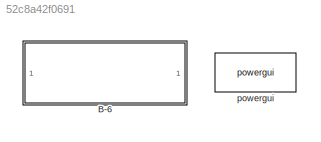
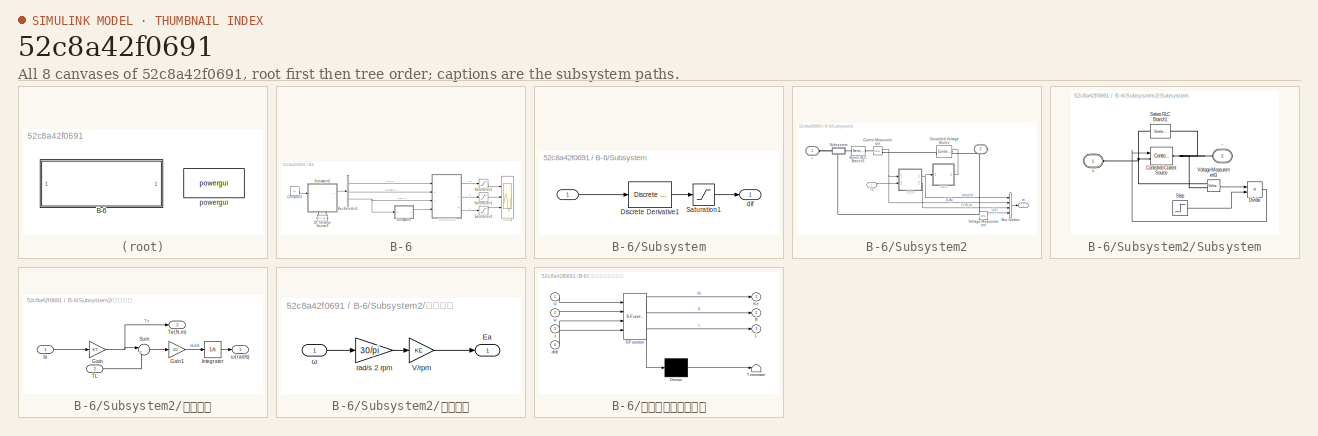
[diagram: thumbnail index - all 8 canvases of the model, root first then tree order]
MODEL slx_52c8a42f0691
KIND model
CONFIG StopFcn = %CELEC_plot;
BLOCK [SubSystem] B-6
  FunctionWithSeparateData = off
  MaskHideContents = off
  MinAlgLoopOccurrences = off
  Opaque = off
  Ports = []
  PropExecContextOutsideSubsystem = off
  RTWSystemCode = Auto
  RequestExecContextInheritance = off
BLOCK [BusSelector] B-6/Bus Selector3
  OutputSignals = U(V),ω(rad/s),Ia(A)
  Ports = [1, 3]
BLOCK [Constant] B-6/Constant3
  Value = 10
BLOCK [Reference] B-6/DC Voltage Source3  REF=powerlib/Electrical
Sources/DC Voltage Source
  Amplitude = Vset
  Measurements = None
  Ports = [0, 0, 0, 0, 0, 1, 1]
  SourceBlock = powerlib/Electrical\nSources/DC Voltage Source
  SourceType = DC Voltage Source
BLOCK [Saturate] B-6/Saturation2
  InputPortMap = u0
  LowerLimit = 0
  Ports = [1, 1]
  UpperLimit = 5
BLOCK [Saturate] B-6/Saturation3
  InputPortMap = u0
  LowerLimit = 0
  Ports = [1, 1]
  UpperLimit = 5
BLOCK [Saturate] B-6/Saturation4
  InputPortMap = u0
  LowerLimit = 0
  Ports = [1, 1]
  UpperLimit = 0.1
BLOCK [SubSystem] B-6/Subsystem
  FunctionWithSeparateData = off
  MaskHideContents = off
  MinAlgLoopOccurrences = off
  Opaque = off
  Ports = [1, 1]
  PropExecContextOutsideSubsystem = off
  RTWSystemCode = Auto
  RequestExecContextInheritance = off
BLOCK [Inport] B-6/Subsystem/ 
  IconDisplay = Port number
BLOCK [Reference] B-6/Subsystem/Discrete Derivative1  REF=simulink/Discrete/Discrete Derivative
  DoSatur = off
  ICPrevScaledInput = 0
  InputProcessing = Elements as channels (sample based)
  LockScale = off
  OutDataType = fixdt(1, 16)
  OutDataTypeStr = Inherit: Inherit via internal rule
  OutMax = []
  OutMin = []
  OutScaling = 2^-10
  OutputDataTypeScalingMode = Inherit via internal rule
  Ports = [1, 1]
  RndMeth = Floor
  SourceBlock = simulink/Discrete/Discrete Derivative
  SourceType = Discrete Derivative
  gainval = 1.0
BLOCK [Saturate] B-6/Subsystem/Saturation1
  InputPortMap = u0
  LowerLimit = -1000
  Ports = [1, 1]
  UpperLimit = 1000
BLOCK [Outport] B-6/Subsystem/dif
  IconDisplay = Port number
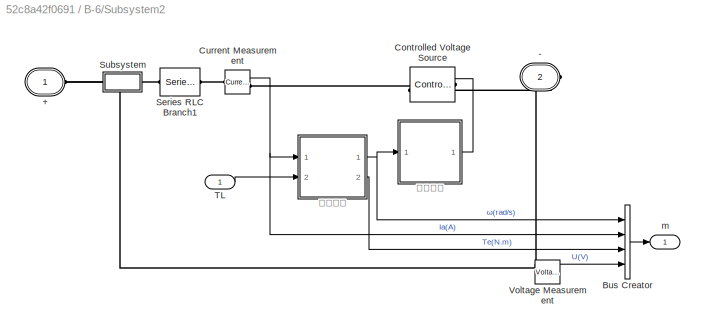
BLOCK [SubSystem] B-6/Subsystem2
  FunctionWithSeparateData = off
  MaskHideContents = off
  MinAlgLoopOccurrences = off
  Opaque = off
  Ports = [1, 1, 0, 0, 0, 1, 1]
  PropExecContextOutsideSubsystem = off
  RTWSystemCode = Auto
  RequestExecContextInheritance = off
BLOCK [PMIOPort] B-6/Subsystem2/+
  Side = Left
  Tag = PMCPort
BLOCK [PMIOPort] B-6/Subsystem2/-
  Port = 2
  Side = Right
  Tag = PMCPort
BLOCK [BusCreator] B-6/Subsystem2/Bus Creator
  DisplayOption = bar
  Inputs = 4
  Ports = [4, 1]
BLOCK [Reference] B-6/Subsystem2/Controlled Voltage Source  REF=powerlib/Electrical
Sources/Controlled Voltage Source
  Amplitude = 0
  Frequency = 0
  Initialize = on
  Measurements = None
  Phase = 0
  Ports = [1, 0, 0, 0, 0, 1, 1]
  SourceBlock = powerlib/Electrical\nSources/Controlled Voltage Source
  SourceType = Controlled Voltage Source
  Source_Type = AC
BLOCK [Reference] B-6/Subsystem2/Current Measurement  REF=powerlib/Measurements/Current Measurement
  OutputType = Complex
  PSBequivalent = 0
  PhasorSimulation = off
  Ports = [0, 1, 0, 0, 0, 1, 1]
  SourceBlock = powerlib/Measurements/Current Measurement
  SourceType = Current Measurement
  UserDataPersistent = on
BLOCK [Reference] B-6/Subsystem2/Series RLC Branch1  REF=powerlib/Elements/Series RLC Branch
  BranchType = L
  Capacitance = 1e-6
  Inductance = L
  InitialCurrent = 0
  InitialVoltage = 0
  LConnTagsString = __new0
  Measurements = None
  Ports = [0, 0, 0, 0, 0, 1, 1]
  RConnTagsString = __new0
  Resistance = R
  SetiL0 = off
  Setx0 = off
  SourceBlock = powerlib/Elements/Series RLC Branch
  SourceType = Series RLC Branch
BLOCK [SubSystem] B-6/Subsystem2/Subsystem
  FunctionWithSeparateData = off
  MaskHideContents = off
  MinAlgLoopOccurrences = off
  Opaque = off
  Ports = [0, 0, 0, 0, 0, 1, 1]
  PropExecContextOutsideSubsystem = off
  RTWSystemCode = Auto
  RequestExecContextInheritance = off
BLOCK [PMIOPort] B-6/Subsystem2/Subsystem/+
  Side = Left
  Tag = PMCPort
BLOCK [PMIOPort] B-6/Subsystem2/Subsystem/-
  Port = 2
  Side = Right
  Tag = PMCPort
BLOCK [Reference] B-6/Subsystem2/Subsystem/Controlled Current Source  REF=powerlib/Electrical
Sources/Controlled Current Source
  Amplitude = 0
  Frequency = 0
  Initialize = on
  Measurements = None
  Phase = 0
  Ports = [1, 0, 0, 0, 0, 1, 1]
  SourceBlock = powerlib/Electrical\nSources/Controlled Current Source
  SourceType = Controlled Current Source
  Source_Type = AC
BLOCK [Product] B-6/Subsystem2/Subsystem/Divide
  InputSameDT = off
  Inputs = */
  OutDataTypeStr = Inherit: Inherit via internal rule
  Ports = [2, 1]
  RndMeth = Floor
  SaturateOnIntegerOverflow = off
BLOCK [Reference] B-6/Subsystem2/Subsystem/Series RLC Branch1  REF=powerlib/Elements/Series RLC Branch
  BranchType = R
  Capacitance = 1e-6
  Inductance = L
  InitialCurrent = 0
  InitialVoltage = 0
  LConnTagsString = __new0
  Measurements = None
  Ports = [0, 0, 0, 0, 0, 1, 1]
  RConnTagsString = __new0
  Resistance = 1e4
  SetiL0 = off
  Setx0 = off
  SourceBlock = powerlib/Elements/Series RLC Branch
  SourceType = Series RLC Branch
BLOCK [Step] B-6/Subsystem2/Subsystem/Step
  After = R*2
  Before = R
  SampleTime = 0
  Time = 0.5
BLOCK [Reference] B-6/Subsystem2/Subsystem/Voltage Measurement3  REF=powerlib/Measurements/Voltage Measurement
  OutputType = Complex
  PSBequivalent = 0
  PhasorSimulation = off
  Ports = [0, 1, 0, 0, 0, 2]
  SourceBlock = powerlib/Measurements/Voltage Measurement
  SourceType = Voltage Measurement
  UserDataPersistent = on
BLOCK [Inport] B-6/Subsystem2/TL
  IconDisplay = Port number
BLOCK [Reference] B-6/Subsystem2/Voltage Measurement  REF=powerlib/Measurements/Voltage Measurement
  OutputType = Complex
  PSBequivalent = 0
  PhasorSimulation = off
  Ports = [0, 1, 0, 0, 0, 2]
  SourceBlock = powerlib/Measurements/Voltage Measurement
  SourceType = Voltage Measurement
  UserDataPersistent = on
BLOCK [Outport] B-6/Subsystem2/m
  IconDisplay = Port number
BLOCK [SubSystem] B-6/Subsystem2/机械方程
  FunctionWithSeparateData = off
  MaskHideContents = off
  MinAlgLoopOccurrences = off
  Opaque = off
  Ports = [2, 2]
  PropExecContextOutsideSubsystem = off
  RTWSystemCode = Auto
  RequestExecContextInheritance = off
BLOCK [Gain] B-6/Subsystem2/机械方程/Gain
  Gain = KT
  OutDataTypeStr = Inherit: Inherit via internal rule
  ParamDataTypeStr = Inherit: Inherit via internal rule
  SaturateOnIntegerOverflow = off
BLOCK [Gain] B-6/Subsystem2/机械方程/Gain1
  Gain = 1/J
  OutDataTypeStr = Inherit: Inherit via internal rule
  ParamDataTypeStr = Inherit: Inherit via internal rule
  SaturateOnIntegerOverflow = off
BLOCK [Inport] B-6/Subsystem2/机械方程/Ia
  IconDisplay = Port number
BLOCK [Integrator] B-6/Subsystem2/机械方程/Integrator
  Ports = [1, 1]
BLOCK [Sum] B-6/Subsystem2/机械方程/Sum
  IconShape = round
  InputSameDT = off
  Inputs = |+-
  OutDataTypeStr = Inherit: Inherit via internal rule
  Ports = [2, 1]
  SaturateOnIntegerOverflow = off
BLOCK [Inport] B-6/Subsystem2/机械方程/TL
  IconDisplay = Port number
  Port = 2
BLOCK [Outport] B-6/Subsystem2/机械方程/Te(N.m)
  IconDisplay = Port number
  Port = 2
BLOCK [Outport] B-6/Subsystem2/机械方程/ω(rad//s)
  IconDisplay = Port number
BLOCK [SubSystem] B-6/Subsystem2/电气方程
  FunctionWithSeparateData = off
  MaskHideContents = off
  MinAlgLoopOccurrences = off
  Opaque = off
  Ports = [1, 1]
  PropExecContextOutsideSubsystem = off
  RTWSystemCode = Auto
  RequestExecContextInheritance = off
BLOCK [Outport] B-6/Subsystem2/电气方程/Ea
  IconDisplay = Port number
BLOCK [Gain] B-6/Subsystem2/电气方程/V//rpm
  Gain = KE
  OutDataTypeStr = Inherit: Inherit via internal rule
  ParamDataTypeStr = Inherit: Inherit via internal rule
  SaturateOnIntegerOverflow = off
BLOCK [Gain] B-6/Subsystem2/电气方程/rad//s 2 rpm
  Gain = 30/pi
  OutDataTypeStr = Inherit: Inherit via internal rule
  ParamDataTypeStr = Inherit: Inherit via internal rule
  SaturateOnIntegerOverflow = off
BLOCK [Inport] B-6/Subsystem2/电气方程/ω
  IconDisplay = Port number
BLOCK [Scope] B-6/参数辨识2
  DataFormat = StructureWithTime
  Decimation = 1
  Floating = off
  Grid = on
  LimitDataPoints = off
  MaxDataPoints = 5000
  NumInputPorts = 3
  Ports = [3]
  SampleInput = off
  SampleTime = -1
  SaveName = ScopeData4
  SaveToWorkspace = off
  ShowLegends = off
  TickLabels = OneTimeTick
  TimeRange = auto
  YMax = 5.625~4.71068~0.1125
  YMin = -0.625~-0.52341~-0.0125
  ZoomMode = on
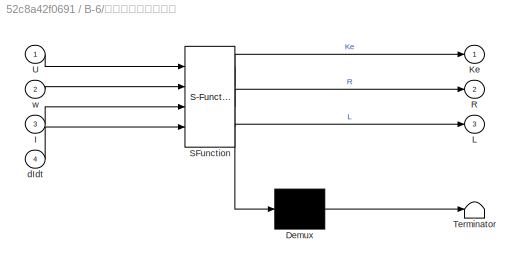
BLOCK [SubSystem] B-6/最小二乘法参数辨识
  ErrorFcn = Stateflow.Translate.translate
  FunctionWithSeparateData = off
  MaskHideContents = off
  MinAlgLoopOccurrences = off
  Opaque = off
  PermitHierarchicalResolution = ParametersOnly
  Ports = [4, 3]
  PropExecContextOutsideSubsystem = off
  RTWSystemCode = Auto
  RequestExecContextInheritance = off
  SFBlockType = MATLAB Function
  TreatAsAtomicUnit = on
BLOCK [Demux] B-6/最小二乘法参数辨识/ Demux 
  Outputs = 1
  Ports = [1, 1]
BLOCK [S-Function] B-6/最小二乘法参数辨识/ SFunction 
  EnableBusSupport = on
  FunctionName = sf_sfun
  PortCounts = [4 4]
  Ports = [4, 4]
  SFunctionDeploymentMode = off
  Tag = Stateflow S-Function B_6_2012b 2
BLOCK [Terminator] B-6/最小二乘法参数辨识/ Terminator 
BLOCK [Inport] B-6/最小二乘法参数辨识/I
  IconDisplay = Port number
  Port = 3
BLOCK [Outport] B-6/最小二乘法参数辨识/Ke
  IconDisplay = Port number
BLOCK [Outport] B-6/最小二乘法参数辨识/L
  IconDisplay = Port number
  Port = 3
BLOCK [Outport] B-6/最小二乘法参数辨识/R
  IconDisplay = Port number
  Port = 2
BLOCK [Inport] B-6/最小二乘法参数辨识/U
  IconDisplay = Port number
BLOCK [Inport] B-6/最小二乘法参数辨识/dIdt
  IconDisplay = Port number
  Port = 4
BLOCK [Inport] B-6/最小二乘法参数辨识/w
  IconDisplay = Port number
  Port = 2
BLOCK [Reference] powergui  REF=powerlib/powergui
  CurrentSourceSwitches = off
  DisableRonSwitches = off
  DisableSnubberDevices = off
  DisableVfSwitches = off
  DisplayEquations = off
  DisplayStyle = 1
  EnableUseOfTLC = off
  ErrMax = 1e-4
  ExternalGateDelay = off
  Frange = [0:2:500]
  FreqAxis = off
  FunctionMessages = off
  HookPort = off
  Interpol = off
  Iterations = 50
  MaxFrequency = 1000
  Pbase = 100e6
  Ports = []
  Priority = 1
  ResistiveCurrentMeasurement = off
  RestoreLinks = warning
  RmsSteady = 1
  SPID = on
  SampleTime = 50e-6
  ShowGrid = off
  SolverType = Tustin/Backward Euler (TBE)
  SourceBlock = powerlib/powergui
  SourceType = PSB option menu block
  StartTime = 0.0
  SwTol = 0
  Ts = 100
  UnitsV = kV
  UnitsW = MW
  Xlog = on
  Ylog = off
  ZoomFFT = off
  buscounter = 0
  cycles = 1
  display = off
  echomessages = off
  frequency = 60
  frequencyindice = 0
  frequencyindicesteady = 1
  fundamental = 60
  methode = off
  save = off
  structure = 0
  variable = ZData
  x0status = blocks
LINE B-6/Bus Selector3:1 -> B-6/最小二乘法参数辨识:1
LINE B-6/Bus Selector3:2 -> B-6/最小二乘法参数辨识:2
NET B-6/Bus Selector3:3 -> B-6/Subsystem:1, B-6/最小二乘法参数辨识:3
LINE B-6/Constant3:1 -> B-6/Subsystem2:1
LINE B-6/Saturation2:1 -> B-6/参数辨识2:1
LINE B-6/Saturation3:1 -> B-6/参数辨识2:2
LINE B-6/Saturation4:1 -> B-6/参数辨识2:3
LINE B-6/Subsystem/ :1 -> B-6/Subsystem/Discrete Derivative1:1
LINE B-6/Subsystem/Discrete Derivative1:1 -> B-6/Subsystem/Saturation1:1
LINE B-6/Subsystem/Saturation1:1 -> B-6/Subsystem/dif:1
LINE B-6/Subsystem2/Bus Creator:1 -> B-6/Subsystem2/m:1
NET B-6/Subsystem2/Current Measurement:1 -> B-6/Subsystem2/Bus Creator:2, B-6/Subsystem2/机械方程:1
LINE B-6/Subsystem2/Subsystem/Divide:1 -> B-6/Subsystem2/Subsystem/Controlled Current Source:1
LINE B-6/Subsystem2/Subsystem/Step:1 -> B-6/Subsystem2/Subsystem/Divide:2
LINE B-6/Subsystem2/Subsystem/Voltage Measurement3:1 -> B-6/Subsystem2/Subsystem/Divide:1
LINE B-6/Subsystem2/TL:1 -> B-6/Subsystem2/机械方程:2
LINE B-6/Subsystem2/Voltage Measurement:1 -> B-6/Subsystem2/Bus Creator:4
LINE B-6/Subsystem2/机械方程/Gain1:1 -> B-6/Subsystem2/机械方程/Integrator:1
NET B-6/Subsystem2/机械方程/Gain:1 -> B-6/Subsystem2/机械方程/Sum:1, B-6/Subsystem2/机械方程/Te(N.m):1
LINE B-6/Subsystem2/机械方程/Ia:1 -> B-6/Subsystem2/机械方程/Gain:1
LINE B-6/Subsystem2/机械方程/Integrator:1 -> B-6/Subsystem2/机械方程/ω(rad//s):1
LINE B-6/Subsystem2/机械方程/Sum:1 -> B-6/Subsystem2/机械方程/Gain1:1
LINE B-6/Subsystem2/机械方程/TL:1 -> B-6/Subsystem2/机械方程/Sum:2
NET B-6/Subsystem2/机械方程:1 -> B-6/Subsystem2/Bus Creator:1, B-6/Subsystem2/电气方程:1
LINE B-6/Subsystem2/机械方程:2 -> B-6/Subsystem2/Bus Creator:3
LINE B-6/Subsystem2/电气方程/V//rpm:1 -> B-6/Subsystem2/电气方程/Ea:1
LINE B-6/Subsystem2/电气方程/rad//s 2 rpm:1 -> B-6/Subsystem2/电气方程/V//rpm:1
LINE B-6/Subsystem2/电气方程/ω:1 -> B-6/Subsystem2/电气方程/rad//s 2 rpm:1
LINE B-6/Subsystem2/电气方程:1 -> B-6/Subsystem2/Controlled Voltage Source:1
LINE B-6/Subsystem2:1 -> B-6/Bus Selector3:1
LINE B-6/Subsystem:1 -> B-6/最小二乘法参数辨识:4
LINE B-6/最小二乘法参数辨识:1 -> B-6/Saturation2:1
LINE B-6/最小二乘法参数辨识:2 -> B-6/Saturation3:1
LINE B-6/最小二乘法参数辨识:3 -> B-6/Saturation4:1
PLINE B-6/DC Voltage Source3:LConn1 -- B-6/Subsystem2:RConn1
PLINE B-6/DC Voltage Source3:RConn1 -- B-6/Subsystem2:LConn1
PNET net1: B-6/Subsystem2/+:RConn1 -- B-6/Subsystem2/Subsystem:LConn1 -- B-6/Subsystem2/Voltage Measurement:LConn1
PNET net2: B-6/Subsystem2/-:RConn1 -- B-6/Subsystem2/Controlled Voltage Source:LConn1 -- B-6/Subsystem2/Voltage Measurement:LConn2
PLINE B-6/Subsystem2/Controlled Voltage Source:RConn1 -- B-6/Subsystem2/Current Measurement:RConn1
PLINE B-6/Subsystem2/Current Measurement:LConn1 -- B-6/Subsystem2/Series RLC Branch1:RConn1
PLINE B-6/Subsystem2/Series RLC Branch1:LConn1 -- B-6/Subsystem2/Subsystem:RConn1
PNET net3: B-6/Subsystem2/Subsystem/+:RConn1 -- B-6/Subsystem2/Subsystem/Controlled Current Source:LConn1 -- B-6/Subsystem2/Subsystem/Series RLC Branch1:LConn1 -- B-6/Subsystem2/Subsystem/Voltage Measurement3:LConn1
PNET net4: B-6/Subsystem2/Subsystem/-:RConn1 -- B-6/Subsystem2/Subsystem/Controlled Current Source:RConn1 -- B-6/Subsystem2/Subsystem/Series RLC Branch1:RConn1 -- B-6/Subsystem2/Subsystem/Voltage Measurement3:LConn2
note: NET lines group one-source signal fan-out (src -> all destinations, sorted); 1:1 wires keep LINE; PNET lines group multi-terminal physical nets as a canonical sorted terminal list (undirected conserving connections); 2-terminal nets keep the pairwise PLINE form
